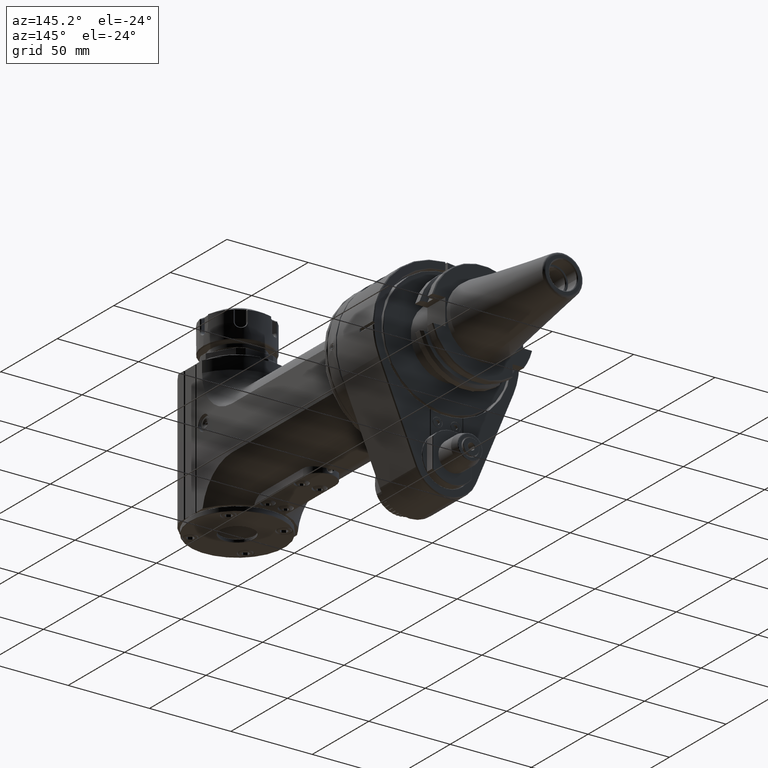
[diagram: clean part render]
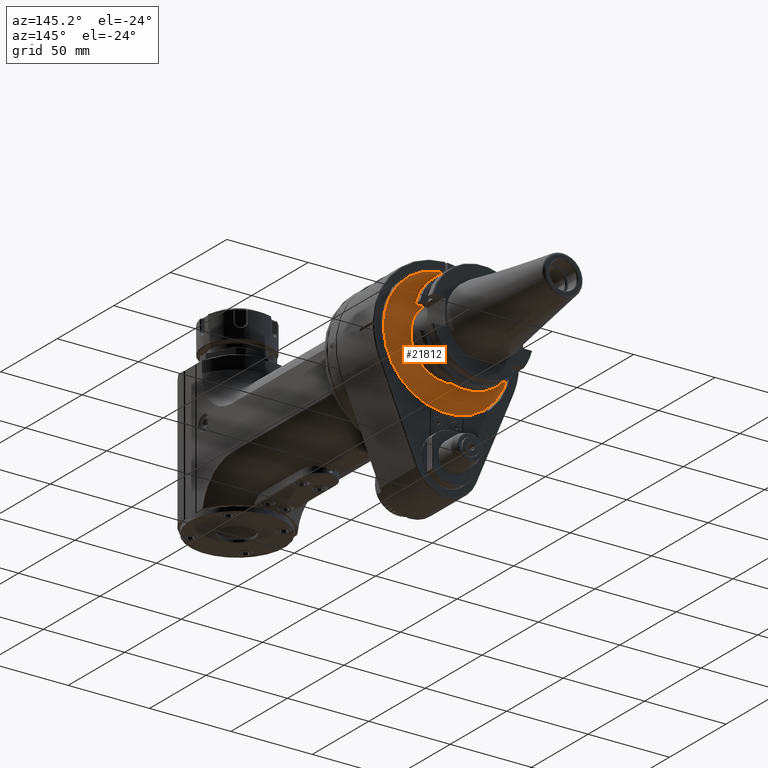
[diagram: same view with one face highlighted and labeled with its STEP entity id]
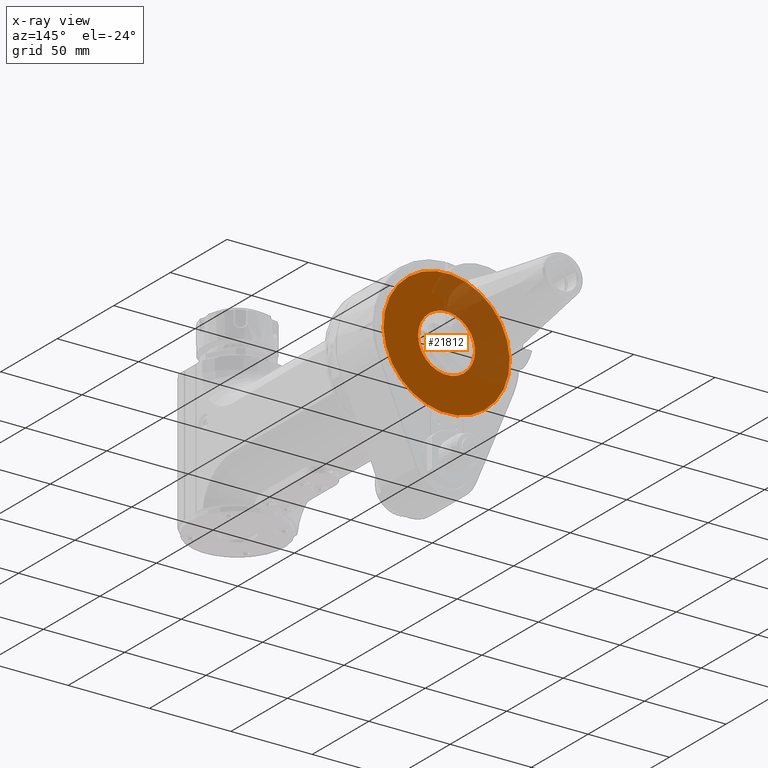
[diagram: x-ray of the same camera — body ghosted, the highlighted face saturated]
A machine part, auxiliary view. The second image highlights one B-rep face of the part: STEP entity #21812.
The next image is the same camera in x-ray: the body ghosted, the highlighted face saturated — about 36% of this face is hidden behind the body in this view.
In plain terms, the highlighted planar face has unit normal (0, -1, 0).
Its self-contained STEP definition (entity closure, byte-faithful):
#373=FACE_BOUND('',#3908,.T.);
#1125=PLANE('',#23716);
#2601=FACE_OUTER_BOUND('',#3907,.T.);
#3907=EDGE_LOOP('',(#20195));
#3908=EDGE_LOOP('',(#20196));
#4703=CIRCLE('',#23695,38.79999689063);
#4713=CIRCLE('',#23715,17.5);
#10863=VERTEX_POINT('',#41382);
#10880=VERTEX_POINT('',#41436);
#13975=EDGE_CURVE('',#10863,#10863,#4703,.T.);
#14001=EDGE_CURVE('',#10880,#10880,#4713,.T.);
#20195=ORIENTED_EDGE('',*,*,#13975,.F.);
#20196=ORIENTED_EDGE('',*,*,#14001,.F.);
#21812=ADVANCED_FACE('',(#2601,#373),#1125,.F.);
#23695=AXIS2_PLACEMENT_3D('',#41384,#29359,#29360);
#23715=AXIS2_PLACEMENT_3D('',#41437,#29415,#29416);
#23716=AXIS2_PLACEMENT_3D('',#41439,#29418,#29419);
#29359=DIRECTION('center_axis',(0.,-1.,0.));
#29360=DIRECTION('ref_axis',(0.866025403784386,0.,-0.500000000000092));
#29415=DIRECTION('center_axis',(0.,1.,0.));
#29416=DIRECTION('ref_axis',(-0.866025403784454,0.,0.499999999999973));
#29418=DIRECTION('center_axis',(0.,-1.,0.));
#29419=DIRECTION('ref_axis',(-0.866025403784429,0.,0.500000000000017));
#41382=CARTESIAN_POINT('',(-33.60178297362,33.,19.39999844605));
#41384=CARTESIAN_POINT('Origin',(-3.090231047541E-13,33.,8.508679944327E-14));
#41436=CARTESIAN_POINT('',(15.1554445662275,33.,-8.75000000000029));
#41437=CARTESIAN_POINT('Origin',(0.,33.,0.));
#41439=CARTESIAN_POINT('Origin',(0.,33.,0.));